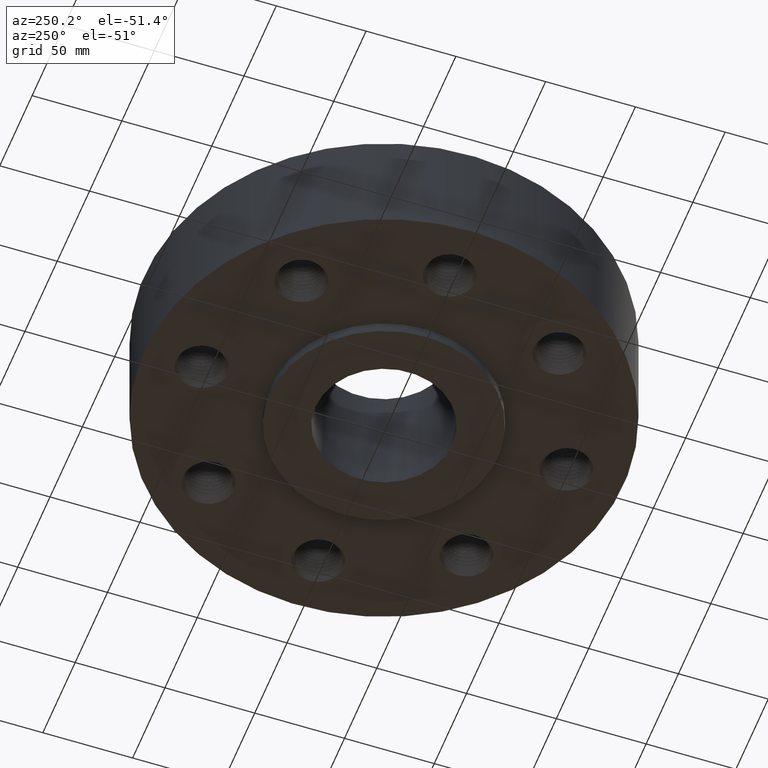
[diagram: clean part render]
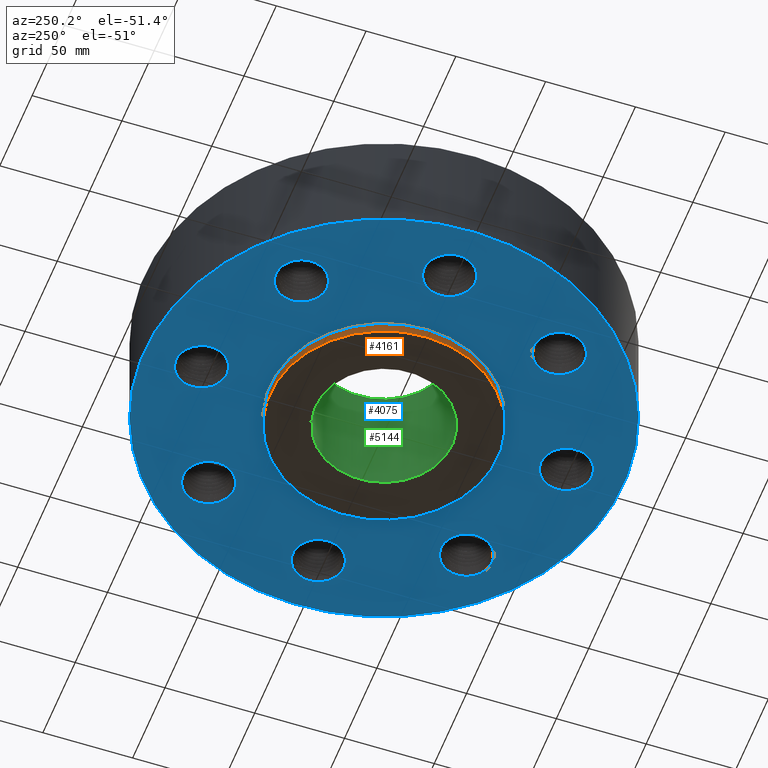
[diagram: same view with three faces highlighted in distinct colors, each labeled with its STEP entity id]
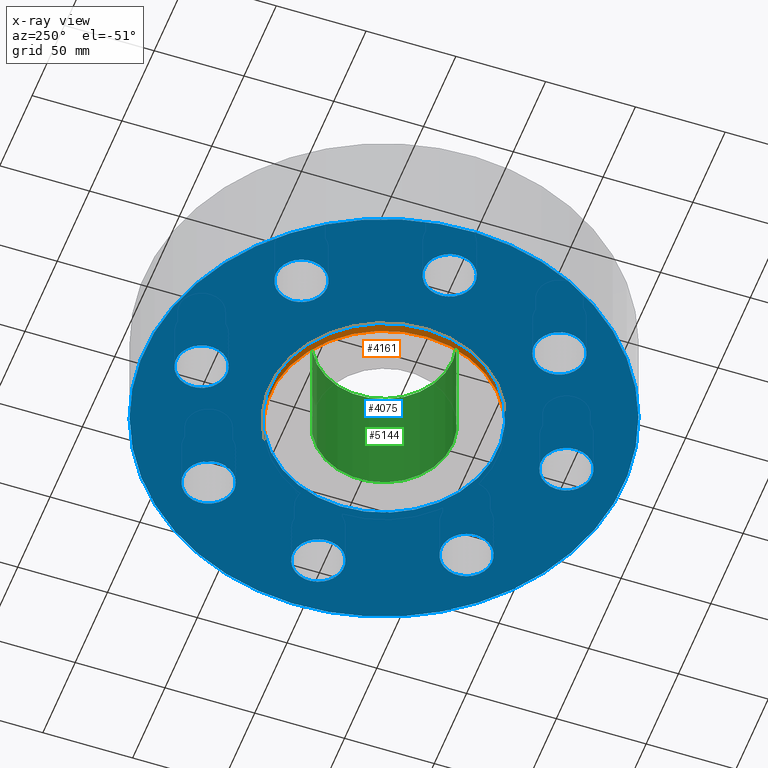
[diagram: x-ray of the same camera — body ghosted, the three highlighted faces saturated]
A machine part, auxiliary view with three faces highlighted in distinct colors.
The next image is the same camera in x-ray (body ghosted, the three faces saturated) — at least one of them is partly hidden behind the body in this view.
Their STEP definitions:

[orange] entity #4161 — the highlighted cylindrical surface (partial cylindrical patch) has radius 63.5 mm, axis along (0, 0, -1).
#3732=AXIS2_PLACEMENT_3D('Circle Axis2P3D',#3730,#3731,$) ;
#4122=AXIS2_PLACEMENT_3D('Cylinder Axis2P3D',#4119,#4120,#4121) ;
#4152=AXIS2_PLACEMENT_3D('Circle Axis2P3D',#4150,#4151,$) ;
#3725=CARTESIAN_POINT('Vertex',(1.19856384652,2.19395640473,-2.81139940724E-014)) ;
#3727=CARTESIAN_POINT('Vertex',(-1.19856384652,-2.19395640473,-2.81139940724E-014)) ;
#3730=CARTESIAN_POINT('Axis2P3D Location',(0.,0.,0.)) ;
#4119=CARTESIAN_POINT('Axis2P3D Location',(0.,0.,1.125)) ;
#4128=CARTESIAN_POINT('Vertex',(1.19856384652,2.19395640473,-0.250000000001)) ;
#4130=CARTESIAN_POINT('Vertex',(-1.19856384652,-2.19395640473,-0.250000000001)) ;
#4133=CARTESIAN_POINT('Line Origine',(1.19856384652,2.19395640473,-0.125000000001)) ;
#4138=CARTESIAN_POINT('Line Origine',(-1.19856384652,-2.19395640473,-0.125000000001)) ;
#4150=CARTESIAN_POINT('Axis2P3D Location',(0.,0.,-0.250000000001)) ;
#3731=DIRECTION('Axis2P3D Direction',(0.,0.,-0.0393700787402)) ;
#4120=DIRECTION('Axis2P3D Direction',(0.,0.,-0.0393700787402)) ;
#4121=DIRECTION('Axis2P3D XDirection',(-0.0188750212049,-0.0345504945626,0.)) ;
#4134=DIRECTION('Vector Direction',(0.,0.,-0.0393700787402)) ;
#4139=DIRECTION('Vector Direction',(0.,0.,-0.0393700787402)) ;
#4151=DIRECTION('Axis2P3D Direction',(0.,0.,-0.0393700787402)) ;
#4135=VECTOR('Line Direction',#4134,0.0393700787402) ;
#4140=VECTOR('Line Direction',#4139,0.0393700787402) ;
#4156=ORIENTED_EDGE('',*,*,#4154,.F.) ;
#4157=ORIENTED_EDGE('',*,*,#4142,.T.) ;
#4158=ORIENTED_EDGE('',*,*,#3734,.T.) ;
#4159=ORIENTED_EDGE('',*,*,#4137,.F.) ;
#4161=ADVANCED_FACE('PartBody',(#4160),#4123,.T.) ;
#3733=CIRCLE('generated circle',#3732,2.50000000001) ;
#4153=CIRCLE('generated circle',#4152,2.50000000001) ;
#4123=CYLINDRICAL_SURFACE('generated cylinder',#4122,2.50000000001) ;
#3734=EDGE_CURVE('',#3728,#3726,#3733,.T.) ;
#4137=EDGE_CURVE('',#4129,#3726,#4136,.F.) ;
#4142=EDGE_CURVE('',#4131,#3728,#4141,.F.) ;
#4154=EDGE_CURVE('',#4131,#4129,#4153,.T.) ;
#4155=EDGE_LOOP('',(#4156,#4157,#4158,#4159)) ;
#4160=FACE_OUTER_BOUND('',#4155,.T.) ;
#4136=LINE('Line',#4133,#4135) ;
#4141=LINE('Line',#4138,#4140) ;
#3726=VERTEX_POINT('',#3725) ;
#3728=VERTEX_POINT('',#3727) ;
#4129=VERTEX_POINT('',#4128) ;
#4131=VERTEX_POINT('',#4130) ;

[blue] entity #4075 — the highlighted planar face has unit normal (0, 0, -1).
#3642=AXIS2_PLACEMENT_3D('Circle Axis2P3D',#3640,#3641,$) ;
#3662=AXIS2_PLACEMENT_3D('Circle Axis2P3D',#3660,#3661,$) ;
#3682=AXIS2_PLACEMENT_3D('Circle Axis2P3D',#3680,#3681,$) ;
#3694=AXIS2_PLACEMENT_3D('Plane Axis2P3D',#3691,#3692,#3693) ;
#3698=AXIS2_PLACEMENT_3D('Circle Axis2P3D',#3696,#3697,$) ;
#3707=AXIS2_PLACEMENT_3D('Circle Axis2P3D',#3705,#3706,$) ;
#3723=AXIS2_PLACEMENT_3D('Circle Axis2P3D',#3721,#3722,$) ;
#3732=AXIS2_PLACEMENT_3D('Circle Axis2P3D',#3730,#3731,$) ;
#3741=AXIS2_PLACEMENT_3D('Circle Axis2P3D',#3739,#3740,$) ;
#3750=AXIS2_PLACEMENT_3D('Circle Axis2P3D',#3748,#3749,$) ;
#3757=AXIS2_PLACEMENT_3D('Circle Axis2P3D',#3755,#3756,$) ;
#3789=AXIS2_PLACEMENT_3D('Circle Axis2P3D',#3787,#3788,$) ;
#3798=AXIS2_PLACEMENT_3D('Circle Axis2P3D',#3796,#3797,$) ;
#3805=AXIS2_PLACEMENT_3D('Circle Axis2P3D',#3803,#3804,$) ;
#3837=AXIS2_PLACEMENT_3D('Circle Axis2P3D',#3835,#3836,$) ;
#3846=AXIS2_PLACEMENT_3D('Circle Axis2P3D',#3844,#3845,$) ;
#3853=AXIS2_PLACEMENT_3D('Circle Axis2P3D',#3851,#3852,$) ;
#3885=AXIS2_PLACEMENT_3D('Circle Axis2P3D',#3883,#3884,$) ;
#3894=AXIS2_PLACEMENT_3D('Circle Axis2P3D',#3892,#3893,$) ;
#3901=AXIS2_PLACEMENT_3D('Circle Axis2P3D',#3899,#3900,$) ;
#3933=AXIS2_PLACEMENT_3D('Circle Axis2P3D',#3931,#3932,$) ;
#3942=AXIS2_PLACEMENT_3D('Circle Axis2P3D',#3940,#3941,$) ;
#3949=AXIS2_PLACEMENT_3D('Circle Axis2P3D',#3947,#3948,$) ;
#3981=AXIS2_PLACEMENT_3D('Circle Axis2P3D',#3979,#3980,$) ;
#3990=AXIS2_PLACEMENT_3D('Circle Axis2P3D',#3988,#3989,$) ;
#3997=AXIS2_PLACEMENT_3D('Circle Axis2P3D',#3995,#3996,$) ;
#4029=AXIS2_PLACEMENT_3D('Circle Axis2P3D',#4027,#4028,$) ;
#4038=AXIS2_PLACEMENT_3D('Circle Axis2P3D',#4036,#4037,$) ;
#4045=AXIS2_PLACEMENT_3D('Circle Axis2P3D',#4043,#4044,$) ;
#3359=CARTESIAN_POINT('Vertex',(2.82842712476,2.26592712476,3.58156199361E-014)) ;
#3578=CARTESIAN_POINT('Vertex',(2.89747982626,2.27270082124,0.)) ;
#3582=CARTESIAN_POINT('Control Point',(2.82842712476,2.26592712476,3.5798136109E-014)) ;
#3583=CARTESIAN_POINT('Control Point',(2.85158082045,2.26675993608,3.57984679613E-014)) ;
#3584=CARTESIAN_POINT('Control Point',(2.8746584541,2.26902509274,-1.4876963671E-012)) ;
#3585=CARTESIAN_POINT('Control Point',(2.89747978848,2.27270071913,5.96971291298E-012)) ;
#3615=CARTESIAN_POINT('Control Point',(2.82842712476,2.26592712476,1.52983487727E-017)) ;
#3616=CARTESIAN_POINT('Control Point',(2.80528583134,2.26675949,1.54089069553E-017)) ;
#3617=CARTESIAN_POINT('Control Point',(2.78222030315,2.26902271954,-2.95298274757E-011)) ;
#3618=CARTESIAN_POINT('Control Point',(2.75940749342,2.27269662185,-7.4516539046E-011)) ;
#3619=CARTESIAN_POINT('Vertex',(2.75940749663,2.27269671266,0.)) ;
#3640=CARTESIAN_POINT('Axis2P3D Location',(2.82842712476,2.82842712476,0.)) ;
#3644=CARTESIAN_POINT('Vertex',(2.3369808901,2.55994882314,-1.39870617276E-016)) ;
#3660=CARTESIAN_POINT('Axis2P3D Location',(2.82842712476,2.82842712476,0.)) ;
#3664=CARTESIAN_POINT('Vertex',(3.31987335942,3.09690542638,-1.83580185174E-016)) ;
#3680=CARTESIAN_POINT('Axis2P3D Location',(2.82842712476,2.82842712476,0.)) ;
#3691=CARTESIAN_POINT('Axis2P3D Location',(0.,5.25000000002,0.)) ;
#3696=CARTESIAN_POINT('Axis2P3D Location',(0.,0.,0.)) ;
#3700=CARTESIAN_POINT('Vertex',(-2.51698407768,-4.60730844994,-3.90239022199E-014)) ;
#3702=CARTESIAN_POINT('Vertex',(2.51698407768,4.60730844994,-3.90239022199E-014)) ;
#3705=CARTESIAN_POINT('Axis2P3D Location',(0.,0.,0.)) ;
#3721=CARTESIAN_POINT('Axis2P3D Location',(0.,0.,0.)) ;
#3725=CARTESIAN_POINT('Vertex',(1.19856384652,2.19395640473,-2.81139940724E-014)) ;
#3727=CARTESIAN_POINT('Vertex',(-1.19856384652,-2.19395640473,-2.81139940724E-014)) ;
#3730=CARTESIAN_POINT('Axis2P3D Location',(0.,0.,0.)) ;
#3739=CARTESIAN_POINT('Axis2P3D Location',(4.00000000002,2.23792987641E-015,0.)) ;
#3743=CARTESIAN_POINT('Vertex',(4.53734779281,-0.157662137441,0.)) ;
#3745=CARTESIAN_POINT('Vertex',(3.65586979582,-0.441785471196,0.)) ;
#3748=CARTESIAN_POINT('Axis2P3D Location',(4.00000000002,1.1189649382E-015,0.)) ;
#3752=CARTESIAN_POINT('Vertex',(3.46265220722,0.157662137441,-1.13644876536E-016)) ;
#3755=CARTESIAN_POINT('Axis2P3D Location',(4.00000000002,2.23792987641E-015,0.)) ;
#3759=CARTESIAN_POINT('Vertex',(3.55823501002,-0.344156495822,0.)) ;
#3763=CARTESIAN_POINT('Control Point',(3.6022524356,-0.397747564419,0.)) ;
#3764=CARTESIAN_POINT('Control Point',(3.59278755896,-0.387576402451,0.)) ;
#3765=CARTESIAN_POINT('Control Point',(3.58364185675,-0.377118132312,0.)) ;
#3766=CARTESIAN_POINT('Control Point',(3.57482728135,-0.366385963536,0.)) ;
#3767=CARTESIAN_POINT('Control Point',(3.56635493658,-0.355393877996,0.)) ;
#3768=CARTESIAN_POINT('Control Point',(3.55823501002,-0.344156495822,0.)) ;
#3769=CARTESIAN_POINT('Vertex',(3.6022524356,-0.397747564419,3.58156199361E-014)) ;
#3773=CARTESIAN_POINT('Control Point',(3.6022524356,-0.397747564419,0.)) ;
#3774=CARTESIAN_POINT('Control Point',(3.61242904866,-0.407217513636,0.)) ;
#3775=CARTESIAN_POINT('Control Point',(3.62289307798,-0.416367945861,0.)) ;
#3776=CARTESIAN_POINT('Control Point',(3.63363085343,-0.42518673022,0.)) ;
#3777=CARTESIAN_POINT('Control Point',(3.64462805209,-0.433662652235,0.)) ;
#3778=CARTESIAN_POINT('Control Point',(3.65586979582,-0.441785471196,0.)) ;
#3787=CARTESIAN_POINT('Axis2P3D Location',(2.82842712476,-2.82842712476,0.)) ;
#3791=CARTESIAN_POINT('Vertex',(3.09690542638,-3.31987335942,0.)) ;
#3793=CARTESIAN_POINT('Vertex',(2.27270082124,-2.89747982626,0.)) ;
#3796=CARTESIAN_POINT('Axis2P3D Location',(2.82842712476,-2.82842712476,0.)) ;
#3800=CARTESIAN_POINT('Vertex',(2.55994882314,-2.3369808901,-1.74838271595E-017)) ;
#3803=CARTESIAN_POINT('Axis2P3D Location',(2.82842712476,-2.82842712476,0.)) ;
#3807=CARTESIAN_POINT('Vertex',(2.27269671266,-2.75940749662,0.)) ;
#3811=CARTESIAN_POINT('Control Point',(2.26592712476,-2.82842712476,0.)) ;
#3812=CARTESIAN_POINT('Control Point',(2.26642654391,-2.81454234871,0.)) ;
#3813=CARTESIAN_POINT('Control Point',(2.26735466959,-2.80068024692,0.)) ;
#3814=CARTESIAN_POINT('Control Point',(2.26871061286,-2.78685861156,0.)) ;
#3815=CARTESIAN_POINT('Control Point',(2.27049233865,-2.7730951809,0.)) ;
#3816=CARTESIAN_POINT('Control Point',(2.27269671266,-2.75940749662,0.)) ;
#3817=CARTESIAN_POINT('Vertex',(2.26592712476,-2.82842712476,3.58156199361E-014)) ;
#3821=CARTESIAN_POINT('Control Point',(2.26592712476,-2.82842712476,0.)) ;
#3822=CARTESIAN_POINT('Control Point',(2.26642681155,-2.84231934217,0.)) ;
#3823=CARTESIAN_POINT('Control Point',(2.26735566497,-2.85618886094,0.)) ;
#3824=CARTESIAN_POINT('Control Point',(2.26871259658,-2.87001743699,0.)) ;
#3825=CARTESIAN_POINT('Control Point',(2.27049540839,-2.88378701268,0.)) ;
#3826=CARTESIAN_POINT('Control Point',(2.27270082124,-2.89747982626,0.)) ;
#3835=CARTESIAN_POINT('Axis2P3D Location',(1.67844740731E-015,-4.00000000002,0.)) ;
#3839=CARTESIAN_POINT('Vertex',(-0.157662137441,-4.53734779281,0.)) ;
#3841=CARTESIAN_POINT('Vertex',(-0.441785471194,-3.65586979581,0.)) ;
#3844=CARTESIAN_POINT('Axis2P3D Location',(1.88825333322E-015,-4.00000000002,0.)) ;
#3848=CARTESIAN_POINT('Vertex',(0.157662137441,-3.46265220722,0.)) ;
#3851=CARTESIAN_POINT('Axis2P3D Location',(1.67844740731E-015,-4.00000000002,0.)) ;
#3855=CARTESIAN_POINT('Vertex',(-0.344156495821,-3.55823501002,0.)) ;
#3859=CARTESIAN_POINT('Control Point',(-0.397747564419,-3.6022524356,0.)) ;
#3860=CARTESIAN_POINT('Control Point',(-0.387576402451,-3.59278755896,0.)) ;
#3861=CARTESIAN_POINT('Control Point',(-0.377118132311,-3.58364185675,0.)) ;
#3862=CARTESIAN_POINT('Control Point',(-0.366385963536,-3.57482728135,0.)) ;
#3863=CARTESIAN_POINT('Control Point',(-0.355393877996,-3.56635493658,0.)) ;
#3864=CARTESIAN_POINT('Control Point',(-0.344156495821,-3.55823501002,0.)) ;
#3865=CARTESIAN_POINT('Vertex',(-0.397747564419,-3.6022524356,3.58156199361E-014)) ;
#3869=CARTESIAN_POINT('Control Point',(-0.397747564419,-3.6022524356,0.)) ;
#3870=CARTESIAN_POINT('Control Point',(-0.407217513635,-3.61242904866,0.)) ;
#3871=CARTESIAN_POINT('Control Point',(-0.41636794586,-3.62289307798,0.)) ;
#3872=CARTESIAN_POINT('Control Point',(-0.425186730218,-3.63363085343,0.)) ;
#3873=CARTESIAN_POINT('Control Point',(-0.433662652233,-3.64462805209,0.)) ;
#3874=CARTESIAN_POINT('Control Point',(-0.441785471194,-3.65586979581,0.)) ;
#3883=CARTESIAN_POINT('Axis2P3D Location',(-2.82842712476,-2.82842712476,0.)) ;
#3887=CARTESIAN_POINT('Vertex',(-3.31987335942,-3.09690542638,0.)) ;
#3889=CARTESIAN_POINT('Vertex',(-2.89747982626,-2.27270082124,0.)) ;
#3892=CARTESIAN_POINT('Axis2P3D Location',(-2.82842712476,-2.82842712476,0.)) ;
#3896=CARTESIAN_POINT('Vertex',(-2.3369808901,-2.55994882314,0.)) ;
#3899=CARTESIAN_POINT('Axis2P3D Location',(-2.82842712476,-2.82842712476,0.)) ;
#3903=CARTESIAN_POINT('Vertex',(-2.75940749662,-2.27269671266,0.)) ;
#3907=CARTESIAN_POINT('Control Point',(-2.82842712476,-2.26592712476,0.)) ;
#3908=CARTESIAN_POINT('Control Point',(-2.81454234871,-2.26642654391,0.)) ;
#3909=CARTESIAN_POINT('Control Point',(-2.80068024692,-2.26735466959,0.)) ;
#3910=CARTESIAN_POINT('Control Point',(-2.78685861156,-2.26871061286,0.)) ;
#3911=CARTESIAN_POINT('Control Point',(-2.7730951809,-2.27049233865,0.)) ;
#3912=CARTESIAN_POINT('Control Point',(-2.75940749662,-2.27269671266,0.)) ;
#3913=CARTESIAN_POINT('Vertex',(-2.82842712476,-2.26592712476,3.58156199361E-014)) ;
#3917=CARTESIAN_POINT('Control Point',(-2.82842712476,-2.26592712476,0.)) ;
#3918=CARTESIAN_POINT('Control Point',(-2.84231934217,-2.26642681155,0.)) ;
#3919=CARTESIAN_POINT('Control Point',(-2.85618886094,-2.26735566497,0.)) ;
#3920=CARTESIAN_POINT('Control Point',(-2.87001743699,-2.26871259658,0.)) ;
#3921=CARTESIAN_POINT('Control Point',(-2.88378701268,-2.27049540839,0.)) ;
#3922=CARTESIAN_POINT('Control Point',(-2.89747982626,-2.27270082124,0.)) ;
#3931=CARTESIAN_POINT('Axis2P3D Location',(-4.00000000002,-1.1189649382E-015,0.)) ;
#3935=CARTESIAN_POINT('Vertex',(-4.53734779281,0.157662137441,0.)) ;
#3937=CARTESIAN_POINT('Vertex',(-3.65586979581,0.441785471194,0.)) ;
#3940=CARTESIAN_POINT('Axis2P3D Location',(-4.00000000002,-1.1189649382E-015,0.)) ;
#3944=CARTESIAN_POINT('Vertex',(-3.46265220722,-0.157662137441,-6.11933950581E-017)) ;
#3947=CARTESIAN_POINT('Axis2P3D Location',(-4.00000000002,-1.1189649382E-015,0.)) ;
#3951=CARTESIAN_POINT('Vertex',(-3.55823501002,0.344156495825,0.)) ;
#3955=CARTESIAN_POINT('Control Point',(-3.6022524356,0.397747564419,0.)) ;
#3956=CARTESIAN_POINT('Control Point',(-3.59278755896,0.387576402452,0.)) ;
#3957=CARTESIAN_POINT('Control Point',(-3.58364185675,0.377118132313,0.)) ;
#3958=CARTESIAN_POINT('Control Point',(-3.57482728135,0.366385963538,0.)) ;
#3959=CARTESIAN_POINT('Control Point',(-3.56635493658,0.355393877999,0.)) ;
#3960=CARTESIAN_POINT('Control Point',(-3.55823501002,0.344156495825,0.)) ;
#3961=CARTESIAN_POINT('Vertex',(-3.6022524356,0.397747564419,3.58156199361E-014)) ;
#3965=CARTESIAN_POINT('Control Point',(-3.6022524356,0.397747564419,0.)) ;
#3966=CARTESIAN_POINT('Control Point',(-3.61242904866,0.407217513635,0.)) ;
#3967=CARTESIAN_POINT('Control Point',(-3.62289307798,0.41636794586,0.)) ;
#3968=CARTESIAN_POINT('Control Point',(-3.63363085343,0.425186730219,0.)) ;
#3969=CARTESIAN_POINT('Control Point',(-3.64462805209,0.433662652234,0.)) ;
#3970=CARTESIAN_POINT('Control Point',(-3.65586979581,0.441785471194,0.)) ;
#3979=CARTESIAN_POINT('Axis2P3D Location',(-2.82842712476,2.82842712476,0.)) ;
#3983=CARTESIAN_POINT('Vertex',(-3.09690542638,3.31987335942,0.)) ;
#3985=CARTESIAN_POINT('Vertex',(-2.27270082124,2.89747982626,0.)) ;
#3988=CARTESIAN_POINT('Axis2P3D Location',(-2.82842712476,2.82842712476,0.)) ;
#3992=CARTESIAN_POINT('Vertex',(-2.55994882314,2.3369808901,2.62257407392E-017)) ;
#3995=CARTESIAN_POINT('Axis2P3D Location',(-2.82842712476,2.82842712476,0.)) ;
#3999=CARTESIAN_POINT('Vertex',(-2.27269671266,2.75940749663,0.)) ;
#4003=CARTESIAN_POINT('Control Point',(-2.26592712476,2.82842712476,0.)) ;
#4004=CARTESIAN_POINT('Control Point',(-2.26642654391,2.81454234871,0.)) ;
#4005=CARTESIAN_POINT('Control Point',(-2.26735466959,2.80068024692,0.)) ;
#4006=CARTESIAN_POINT('Control Point',(-2.26871061286,2.78685861156,0.)) ;
#4007=CARTESIAN_POINT('Control Point',(-2.27049233865,2.7730951809,0.)) ;
#4008=CARTESIAN_POINT('Control Point',(-2.27269671266,2.75940749663,0.)) ;
#4009=CARTESIAN_POINT('Vertex',(-2.26592712476,2.82842712476,3.58156199361E-014)) ;
#4013=CARTESIAN_POINT('Control Point',(-2.26592712476,2.82842712476,0.)) ;
#4014=CARTESIAN_POINT('Control Point',(-2.26642681155,2.84231934217,0.)) ;
#4015=CARTESIAN_POINT('Control Point',(-2.26735566497,2.85618886094,0.)) ;
#4016=CARTESIAN_POINT('Control Point',(-2.26871259658,2.87001743699,0.)) ;
#4017=CARTESIAN_POINT('Control Point',(-2.27049540839,2.88378701267,0.)) ;
#4018=CARTESIAN_POINT('Control Point',(-2.27270082124,2.89747982626,0.)) ;
#4027=CARTESIAN_POINT('Axis2P3D Location',(-1.81831802458E-015,4.00000000002,0.)) ;
#4031=CARTESIAN_POINT('Vertex',(0.157662137441,4.53734779281,0.)) ;
#4033=CARTESIAN_POINT('Vertex',(0.44178547119,3.65586979581,0.)) ;
#4036=CARTESIAN_POINT('Axis2P3D Location',(-1.88825333322E-015,4.00000000002,0.)) ;
#4040=CARTESIAN_POINT('Vertex',(-0.157662137441,3.46265220722,0.)) ;
#4043=CARTESIAN_POINT('Axis2P3D Location',(-1.81831802458E-015,4.00000000002,0.)) ;
#4047=CARTESIAN_POINT('Vertex',(0.344156495821,3.55823501002,0.)) ;
#4051=CARTESIAN_POINT('Control Point',(0.397747564419,3.6022524356,0.)) ;
#4052=CARTESIAN_POINT('Control Point',(0.387576402451,3.59278755896,0.)) ;
#4053=CARTESIAN_POINT('Control Point',(0.377118132312,3.58364185675,0.)) ;
#4054=CARTESIAN_POINT('Control Point',(0.366385963536,3.57482728135,0.)) ;
#4055=CARTESIAN_POINT('Control Point',(0.355393877996,3.56635493658,0.)) ;
#4056=CARTESIAN_POINT('Control Point',(0.344156495821,3.55823501002,0.)) ;
#4057=CARTESIAN_POINT('Vertex',(0.397747564419,3.6022524356,3.58156199361E-014)) ;
#4061=CARTESIAN_POINT('Control Point',(0.397747564419,3.6022524356,0.)) ;
#4062=CARTESIAN_POINT('Control Point',(0.407217513634,3.61242904866,0.)) ;
#4063=CARTESIAN_POINT('Control Point',(0.416367945858,3.62289307798,0.)) ;
#4064=CARTESIAN_POINT('Control Point',(0.425186730216,3.63363085343,0.)) ;
#4065=CARTESIAN_POINT('Control Point',(0.43366265223,3.64462805209,0.)) ;
#4066=CARTESIAN_POINT('Control Point',(0.44178547119,3.65586979581,0.)) ;
#3641=DIRECTION('Axis2P3D Direction',(0.,0.,-0.0393700787402)) ;
#3661=DIRECTION('Axis2P3D Direction',(0.,0.,-0.0393700787402)) ;
#3681=DIRECTION('Axis2P3D Direction',(0.,0.,-0.0393700787402)) ;
#3692=DIRECTION('Axis2P3D Direction',(0.,0.,-0.0393700787402)) ;
#3693=DIRECTION('Axis2P3D XDirection',(0.0393700787402,0.,0.)) ;
#3697=DIRECTION('Axis2P3D Direction',(0.,0.,-0.0393700787402)) ;
#3706=DIRECTION('Axis2P3D Direction',(0.,0.,-0.0393700787402)) ;
#3722=DIRECTION('Axis2P3D Direction',(0.,0.,-0.0393700787402)) ;
#3731=DIRECTION('Axis2P3D Direction',(0.,0.,-0.0393700787402)) ;
#3740=DIRECTION('Axis2P3D Direction',(0.,0.,-0.0393700787402)) ;
#3749=DIRECTION('Axis2P3D Direction',(0.,0.,-0.0393700787402)) ;
#3756=DIRECTION('Axis2P3D Direction',(0.,0.,-0.0393700787402)) ;
#3788=DIRECTION('Axis2P3D Direction',(0.,0.,-0.0393700787402)) ;
#3797=DIRECTION('Axis2P3D Direction',(0.,0.,-0.0393700787402)) ;
#3804=DIRECTION('Axis2P3D Direction',(0.,0.,-0.0393700787402)) ;
#3836=DIRECTION('Axis2P3D Direction',(0.,0.,-0.0393700787402)) ;
#3845=DIRECTION('Axis2P3D Direction',(0.,0.,-0.0393700787402)) ;
#3852=DIRECTION('Axis2P3D Direction',(0.,0.,-0.0393700787402)) ;
#3884=DIRECTION('Axis2P3D Direction',(0.,0.,-0.0393700787402)) ;
#3893=DIRECTION('Axis2P3D Direction',(0.,0.,-0.0393700787402)) ;
#3900=DIRECTION('Axis2P3D Direction',(0.,0.,-0.0393700787402)) ;
#3932=DIRECTION('Axis2P3D Direction',(0.,0.,-0.0393700787402)) ;
#3941=DIRECTION('Axis2P3D Direction',(0.,0.,-0.0393700787402)) ;
#3948=DIRECTION('Axis2P3D Direction',(0.,0.,-0.0393700787402)) ;
#3980=DIRECTION('Axis2P3D Direction',(0.,0.,-0.0393700787402)) ;
#3989=DIRECTION('Axis2P3D Direction',(0.,0.,-0.0393700787402)) ;
#3996=DIRECTION('Axis2P3D Direction',(0.,0.,-0.0393700787402)) ;
#4028=DIRECTION('Axis2P3D Direction',(0.,0.,-0.0393700787402)) ;
#4037=DIRECTION('Axis2P3D Direction',(0.,0.,-0.0393700787402)) ;
#4044=DIRECTION('Axis2P3D Direction',(0.,0.,-0.0393700787402)) ;
#3711=ORIENTED_EDGE('',*,*,#3704,.T.) ;
#3712=ORIENTED_EDGE('',*,*,#3709,.T.) ;
#3715=ORIENTED_EDGE('',*,*,#3684,.F.) ;
#3716=ORIENTED_EDGE('',*,*,#3666,.F.) ;
#3717=ORIENTED_EDGE('',*,*,#3646,.F.) ;
#3718=ORIENTED_EDGE('',*,*,#3621,.F.) ;
#3719=ORIENTED_EDGE('',*,*,#3586,.T.) ;
#3736=ORIENTED_EDGE('',*,*,#3729,.F.) ;
#3737=ORIENTED_EDGE('',*,*,#3734,.F.) ;
#3781=ORIENTED_EDGE('',*,*,#3747,.F.) ;
#3782=ORIENTED_EDGE('',*,*,#3754,.F.) ;
#3783=ORIENTED_EDGE('',*,*,#3761,.F.) ;
#3784=ORIENTED_EDGE('',*,*,#3771,.F.) ;
#3785=ORIENTED_EDGE('',*,*,#3779,.T.) ;
#3829=ORIENTED_EDGE('',*,*,#3795,.F.) ;
#3830=ORIENTED_EDGE('',*,*,#3802,.F.) ;
#3831=ORIENTED_EDGE('',*,*,#3809,.F.) ;
#3832=ORIENTED_EDGE('',*,*,#3819,.F.) ;
#3833=ORIENTED_EDGE('',*,*,#3827,.T.) ;
#3877=ORIENTED_EDGE('',*,*,#3843,.F.) ;
#3878=ORIENTED_EDGE('',*,*,#3850,.F.) ;
#3879=ORIENTED_EDGE('',*,*,#3857,.F.) ;
#3880=ORIENTED_EDGE('',*,*,#3867,.F.) ;
#3881=ORIENTED_EDGE('',*,*,#3875,.T.) ;
#3925=ORIENTED_EDGE('',*,*,#3891,.F.) ;
#3926=ORIENTED_EDGE('',*,*,#3898,.F.) ;
#3927=ORIENTED_EDGE('',*,*,#3905,.F.) ;
#3928=ORIENTED_EDGE('',*,*,#3915,.F.) ;
#3929=ORIENTED_EDGE('',*,*,#3923,.T.) ;
#3973=ORIENTED_EDGE('',*,*,#3939,.F.) ;
#3974=ORIENTED_EDGE('',*,*,#3946,.F.) ;
#3975=ORIENTED_EDGE('',*,*,#3953,.F.) ;
#3976=ORIENTED_EDGE('',*,*,#3963,.F.) ;
#3977=ORIENTED_EDGE('',*,*,#3971,.T.) ;
#4021=ORIENTED_EDGE('',*,*,#3987,.F.) ;
#4022=ORIENTED_EDGE('',*,*,#3994,.F.) ;
#4023=ORIENTED_EDGE('',*,*,#4001,.F.) ;
#4024=ORIENTED_EDGE('',*,*,#4011,.F.) ;
#4025=ORIENTED_EDGE('',*,*,#4019,.T.) ;
#4069=ORIENTED_EDGE('',*,*,#4035,.F.) ;
#4070=ORIENTED_EDGE('',*,*,#4042,.F.) ;
#4071=ORIENTED_EDGE('',*,*,#4049,.F.) ;
#4072=ORIENTED_EDGE('',*,*,#4059,.F.) ;
#4073=ORIENTED_EDGE('',*,*,#4067,.T.) ;
#3720=FACE_BOUND('',#3714,.T.) ;
#3738=FACE_BOUND('',#3735,.T.) ;
#3786=FACE_BOUND('',#3780,.T.) ;
#3834=FACE_BOUND('',#3828,.T.) ;
#3882=FACE_BOUND('',#3876,.T.) ;
#3930=FACE_BOUND('',#3924,.T.) ;
#3978=FACE_BOUND('',#3972,.T.) ;
#4026=FACE_BOUND('',#4020,.T.) ;
#4074=FACE_BOUND('',#4068,.T.) ;
#4075=ADVANCED_FACE('PartBody',(#3713,#3720,#3738,#3786,#3834,#3882,#3930,#3978,#4026,#4074),#3695,.T.) ;
#3581=B_SPLINE_CURVE_WITH_KNOTS('',3,(#3582,#3583,#3584,#3585),.UNSPECIFIED.,.F.,.U.,(4,4),(0.,2.42950799599),.UNSPECIFIED.) ;
#3614=B_SPLINE_CURVE_WITH_KNOTS('',3,(#3615,#3616,#3617,#3618),.UNSPECIFIED.,.F.,.U.,(4,4),(0.,2.42820663111),.UNSPECIFIED.) ;
#3762=B_SPLINE_CURVE_WITH_KNOTS('',5,(#3763,#3764,#3765,#3766,#3767,#3768),.UNSPECIFIED.,.F.,.U.,(6,6),(0.,2.42820663116),.UNSPECIFIED.) ;
#3772=B_SPLINE_CURVE_WITH_KNOTS('',5,(#3773,#3774,#3775,#3776,#3777,#3778),.UNSPECIFIED.,.F.,.U.,(6,6),(0.,2.42950799633),.UNSPECIFIED.) ;
#3810=B_SPLINE_CURVE_WITH_KNOTS('',5,(#3811,#3812,#3813,#3814,#3815,#3816),.UNSPECIFIED.,.F.,.U.,(6,6),(0.,2.42820663119),.UNSPECIFIED.) ;
#3820=B_SPLINE_CURVE_WITH_KNOTS('',5,(#3821,#3822,#3823,#3824,#3825,#3826),.UNSPECIFIED.,.F.,.U.,(6,6),(0.,2.42950799608),.UNSPECIFIED.) ;
#3858=B_SPLINE_CURVE_WITH_KNOTS('',5,(#3859,#3860,#3861,#3862,#3863,#3864),.UNSPECIFIED.,.F.,.U.,(6,6),(0.,2.42820663121),.UNSPECIFIED.) ;
#3868=B_SPLINE_CURVE_WITH_KNOTS('',5,(#3869,#3870,#3871,#3872,#3873,#3874),.UNSPECIFIED.,.F.,.U.,(6,6),(0.,2.42950799617),.UNSPECIFIED.) ;
#3906=B_SPLINE_CURVE_WITH_KNOTS('',5,(#3907,#3908,#3909,#3910,#3911,#3912),.UNSPECIFIED.,.F.,.U.,(6,6),(0.,2.42820663117),.UNSPECIFIED.) ;
#3916=B_SPLINE_CURVE_WITH_KNOTS('',5,(#3917,#3918,#3919,#3920,#3921,#3922),.UNSPECIFIED.,.F.,.U.,(6,6),(0.,2.42950799609),.UNSPECIFIED.) ;
#3954=B_SPLINE_CURVE_WITH_KNOTS('',5,(#3955,#3956,#3957,#3958,#3959,#3960),.UNSPECIFIED.,.F.,.U.,(6,6),(0.,2.42820663099),.UNSPECIFIED.) ;
#3964=B_SPLINE_CURVE_WITH_KNOTS('',5,(#3965,#3966,#3967,#3968,#3969,#3970),.UNSPECIFIED.,.F.,.U.,(6,6),(0.,2.42950799619),.UNSPECIFIED.) ;
#4002=B_SPLINE_CURVE_WITH_KNOTS('',5,(#4003,#4004,#4005,#4006,#4007,#4008),.UNSPECIFIED.,.F.,.U.,(6,6),(0.,2.42820663112),.UNSPECIFIED.) ;
#4012=B_SPLINE_CURVE_WITH_KNOTS('',5,(#4013,#4014,#4015,#4016,#4017,#4018),.UNSPECIFIED.,.F.,.U.,(6,6),(0.,2.42950799598),.UNSPECIFIED.) ;
#4050=B_SPLINE_CURVE_WITH_KNOTS('',5,(#4051,#4052,#4053,#4054,#4055,#4056),.UNSPECIFIED.,.F.,.U.,(6,6),(0.,2.42820663117),.UNSPECIFIED.) ;
#4060=B_SPLINE_CURVE_WITH_KNOTS('',5,(#4061,#4062,#4063,#4064,#4065,#4066),.UNSPECIFIED.,.F.,.U.,(6,6),(0.,2.42950799592),.UNSPECIFIED.) ;
#3643=CIRCLE('generated circle',#3642,0.560000000002) ;
#3663=CIRCLE('generated circle',#3662,0.560000000002) ;
#3683=CIRCLE('generated circle',#3682,0.560000000002) ;
#3699=CIRCLE('generated circle',#3698,5.25000000002) ;
#3708=CIRCLE('generated circle',#3707,5.25000000002) ;
#3724=CIRCLE('generated circle',#3723,2.50000000001) ;
#3733=CIRCLE('generated circle',#3732,2.50000000001) ;
#3742=CIRCLE('generated circle',#3741,0.560000000002) ;
#3751=CIRCLE('generated circle',#3750,0.560000000002) ;
#3758=CIRCLE('generated circle',#3757,0.560000000002) ;
#3790=CIRCLE('generated circle',#3789,0.560000000002) ;
#3799=CIRCLE('generated circle',#3798,0.560000000002) ;
#3806=CIRCLE('generated circle',#3805,0.560000000002) ;
#3838=CIRCLE('generated circle',#3837,0.560000000002) ;
#3847=CIRCLE('generated circle',#3846,0.560000000002) ;
#3854=CIRCLE('generated circle',#3853,0.560000000002) ;
#3886=CIRCLE('generated circle',#3885,0.560000000002) ;
#3895=CIRCLE('generated circle',#3894,0.560000000002) ;
#3902=CIRCLE('generated circle',#3901,0.560000000002) ;
#3934=CIRCLE('generated circle',#3933,0.560000000002) ;
#3943=CIRCLE('generated circle',#3942,0.560000000002) ;
#3950=CIRCLE('generated circle',#3949,0.560000000002) ;
#3982=CIRCLE('generated circle',#3981,0.560000000002) ;
#3991=CIRCLE('generated circle',#3990,0.560000000002) ;
#3998=CIRCLE('generated circle',#3997,0.560000000002) ;
#4030=CIRCLE('generated circle',#4029,0.560000000002) ;
#4039=CIRCLE('generated circle',#4038,0.560000000002) ;
#4046=CIRCLE('generated circle',#4045,0.560000000002) ;
#3586=EDGE_CURVE('',#3360,#3579,#3581,.T.) ;
#3621=EDGE_CURVE('',#3360,#3620,#3614,.T.) ;
#3646=EDGE_CURVE('',#3620,#3645,#3643,.T.) ;
#3666=EDGE_CURVE('',#3645,#3665,#3663,.T.) ;
#3684=EDGE_CURVE('',#3665,#3579,#3683,.T.) ;
#3704=EDGE_CURVE('',#3701,#3703,#3699,.T.) ;
#3709=EDGE_CURVE('',#3703,#3701,#3708,.T.) ;
#3729=EDGE_CURVE('',#3726,#3728,#3724,.T.) ;
#3734=EDGE_CURVE('',#3728,#3726,#3733,.T.) ;
#3747=EDGE_CURVE('',#3744,#3746,#3742,.T.) ;
#3754=EDGE_CURVE('',#3753,#3744,#3751,.T.) ;
#3761=EDGE_CURVE('',#3760,#3753,#3758,.T.) ;
#3771=EDGE_CURVE('',#3770,#3760,#3762,.T.) ;
#3779=EDGE_CURVE('',#3770,#3746,#3772,.T.) ;
#3795=EDGE_CURVE('',#3792,#3794,#3790,.T.) ;
#3802=EDGE_CURVE('',#3801,#3792,#3799,.T.) ;
#3809=EDGE_CURVE('',#3808,#3801,#3806,.T.) ;
#3819=EDGE_CURVE('',#3818,#3808,#3810,.T.) ;
#3827=EDGE_CURVE('',#3818,#3794,#3820,.T.) ;
#3843=EDGE_CURVE('',#3840,#3842,#3838,.T.) ;
#3850=EDGE_CURVE('',#3849,#3840,#3847,.T.) ;
#3857=EDGE_CURVE('',#3856,#3849,#3854,.T.) ;
#3867=EDGE_CURVE('',#3866,#3856,#3858,.T.) ;
#3875=EDGE_CURVE('',#3866,#3842,#3868,.T.) ;
#3891=EDGE_CURVE('',#3888,#3890,#3886,.T.) ;
#3898=EDGE_CURVE('',#3897,#3888,#3895,.T.) ;
#3905=EDGE_CURVE('',#3904,#3897,#3902,.T.) ;
#3915=EDGE_CURVE('',#3914,#3904,#3906,.T.) ;
#3923=EDGE_CURVE('',#3914,#3890,#3916,.T.) ;
#3939=EDGE_CURVE('',#3936,#3938,#3934,.T.) ;
#3946=EDGE_CURVE('',#3945,#3936,#3943,.T.) ;
#3953=EDGE_CURVE('',#3952,#3945,#3950,.T.) ;
#3963=EDGE_CURVE('',#3962,#3952,#3954,.T.) ;
#3971=EDGE_CURVE('',#3962,#3938,#3964,.T.) ;
#3987=EDGE_CURVE('',#3984,#3986,#3982,.T.) ;
#3994=EDGE_CURVE('',#3993,#3984,#3991,.T.) ;
#4001=EDGE_CURVE('',#4000,#3993,#3998,.T.) ;
#4011=EDGE_CURVE('',#4010,#4000,#4002,.T.) ;
#4019=EDGE_CURVE('',#4010,#3986,#4012,.T.) ;
#4035=EDGE_CURVE('',#4032,#4034,#4030,.T.) ;
#4042=EDGE_CURVE('',#4041,#4032,#4039,.T.) ;
#4049=EDGE_CURVE('',#4048,#4041,#4046,.T.) ;
#4059=EDGE_CURVE('',#4058,#4048,#4050,.T.) ;
#4067=EDGE_CURVE('',#4058,#4034,#4060,.T.) ;
#3710=EDGE_LOOP('',(#3711,#3712)) ;
#3714=EDGE_LOOP('',(#3715,#3716,#3717,#3718,#3719)) ;
#3735=EDGE_LOOP('',(#3736,#3737)) ;
#3780=EDGE_LOOP('',(#3781,#3782,#3783,#3784,#3785)) ;
#3828=EDGE_LOOP('',(#3829,#3830,#3831,#3832,#3833)) ;
#3876=EDGE_LOOP('',(#3877,#3878,#3879,#3880,#3881)) ;
#3924=EDGE_LOOP('',(#3925,#3926,#3927,#3928,#3929)) ;
#3972=EDGE_LOOP('',(#3973,#3974,#3975,#3976,#3977)) ;
#4020=EDGE_LOOP('',(#4021,#4022,#4023,#4024,#4025)) ;
#4068=EDGE_LOOP('',(#4069,#4070,#4071,#4072,#4073)) ;
#3713=FACE_OUTER_BOUND('',#3710,.T.) ;
#3695=PLANE('',#3694) ;
#3360=VERTEX_POINT('',#3359) ;
#3579=VERTEX_POINT('',#3578) ;
#3620=VERTEX_POINT('',#3619) ;
#3645=VERTEX_POINT('',#3644) ;
#3665=VERTEX_POINT('',#3664) ;
#3701=VERTEX_POINT('',#3700) ;
#3703=VERTEX_POINT('',#3702) ;
#3726=VERTEX_POINT('',#3725) ;
#3728=VERTEX_POINT('',#3727) ;
#3744=VERTEX_POINT('',#3743) ;
#3746=VERTEX_POINT('',#3745) ;
#3753=VERTEX_POINT('',#3752) ;
#3760=VERTEX_POINT('',#3759) ;
#3770=VERTEX_POINT('',#3769) ;
#3792=VERTEX_POINT('',#3791) ;
#3794=VERTEX_POINT('',#3793) ;
#3801=VERTEX_POINT('',#3800) ;
#3808=VERTEX_POINT('',#3807) ;
#3818=VERTEX_POINT('',#3817) ;
#3840=VERTEX_POINT('',#3839) ;
#3842=VERTEX_POINT('',#3841) ;
#3849=VERTEX_POINT('',#3848) ;
#3856=VERTEX_POINT('',#3855) ;
#3866=VERTEX_POINT('',#3865) ;
#3888=VERTEX_POINT('',#3887) ;
#3890=VERTEX_POINT('',#3889) ;
#3897=VERTEX_POINT('',#3896) ;
#3904=VERTEX_POINT('',#3903) ;
#3914=VERTEX_POINT('',#3913) ;
#3936=VERTEX_POINT('',#3935) ;
#3938=VERTEX_POINT('',#3937) ;
#3945=VERTEX_POINT('',#3944) ;
#3952=VERTEX_POINT('',#3951) ;
#3962=VERTEX_POINT('',#3961) ;
#3984=VERTEX_POINT('',#3983) ;
#3986=VERTEX_POINT('',#3985) ;
#3993=VERTEX_POINT('',#3992) ;
#4000=VERTEX_POINT('',#3999) ;
#4010=VERTEX_POINT('',#4009) ;
#4032=VERTEX_POINT('',#4031) ;
#4034=VERTEX_POINT('',#4033) ;
#4041=VERTEX_POINT('',#4040) ;
#4048=VERTEX_POINT('',#4047) ;
#4058=VERTEX_POINT('',#4057) ;

[green] entity #5144 — the highlighted cylindrical surface (partial cylindrical patch) has radius 38.1 mm, axis along (0, 0, -1).
#5097=AXIS2_PLACEMENT_3D('Circle Axis2P3D',#5095,#5096,$) ;
#5117=AXIS2_PLACEMENT_3D('Cylinder Axis2P3D',#5114,#5115,#5116) ;
#5121=AXIS2_PLACEMENT_3D('Circle Axis2P3D',#5119,#5120,$) ;
#5095=CARTESIAN_POINT('Axis2P3D Location',(0.,0.,-0.250000000001)) ;
#5099=CARTESIAN_POINT('Vertex',(0.719138307909,1.31637384284,-0.250000000001)) ;
#5101=CARTESIAN_POINT('Vertex',(-0.719138307909,-1.31637384284,-0.250000000001)) ;
#5114=CARTESIAN_POINT('Axis2P3D Location',(0.,0.,1.125)) ;
#5119=CARTESIAN_POINT('Axis2P3D Location',(0.,0.,2.50000000001)) ;
#5123=CARTESIAN_POINT('Vertex',(0.719138307909,1.31637384284,2.50000000001)) ;
#5125=CARTESIAN_POINT('Vertex',(-0.719138307909,-1.31637384284,2.50000000001)) ;
#5128=CARTESIAN_POINT('Line Origine',(0.719138307909,1.31637384284,1.125)) ;
#5133=CARTESIAN_POINT('Line Origine',(-0.719138307909,-1.31637384284,1.125)) ;
#5096=DIRECTION('Axis2P3D Direction',(0.,0.,-0.0393700787402)) ;
#5115=DIRECTION('Axis2P3D Direction',(0.,0.,-0.0393700787402)) ;
#5116=DIRECTION('Axis2P3D XDirection',(-0.0188750212049,-0.0345504945626,0.)) ;
#5120=DIRECTION('Axis2P3D Direction',(0.,0.,-0.0393700787402)) ;
#5129=DIRECTION('Vector Direction',(0.,0.,-0.0393700787402)) ;
#5134=DIRECTION('Vector Direction',(0.,0.,-0.0393700787402)) ;
#5130=VECTOR('Line Direction',#5129,0.0393700787402) ;
#5135=VECTOR('Line Direction',#5134,0.0393700787402) ;
#5139=ORIENTED_EDGE('',*,*,#5127,.F.) ;
#5140=ORIENTED_EDGE('',*,*,#5132,.T.) ;
#5141=ORIENTED_EDGE('',*,*,#5103,.T.) ;
#5142=ORIENTED_EDGE('',*,*,#5137,.F.) ;
#5144=ADVANCED_FACE('PartBody',(#5143),#5118,.F.) ;
#5098=CIRCLE('generated circle',#5097,1.50000000001) ;
#5122=CIRCLE('generated circle',#5121,1.50000000001) ;
#5118=CYLINDRICAL_SURFACE('generated cylinder',#5117,1.50000000001) ;
#5103=EDGE_CURVE('',#5100,#5102,#5098,.T.) ;
#5127=EDGE_CURVE('',#5124,#5126,#5122,.T.) ;
#5132=EDGE_CURVE('',#5124,#5100,#5131,.T.) ;
#5137=EDGE_CURVE('',#5126,#5102,#5136,.T.) ;
#5138=EDGE_LOOP('',(#5139,#5140,#5141,#5142)) ;
#5143=FACE_OUTER_BOUND('',#5138,.T.) ;
#5131=LINE('Line',#5128,#5130) ;
#5136=LINE('Line',#5133,#5135) ;
#5100=VERTEX_POINT('',#5099) ;
#5102=VERTEX_POINT('',#5101) ;
#5124=VERTEX_POINT('',#5123) ;
#5126=VERTEX_POINT('',#5125) ;